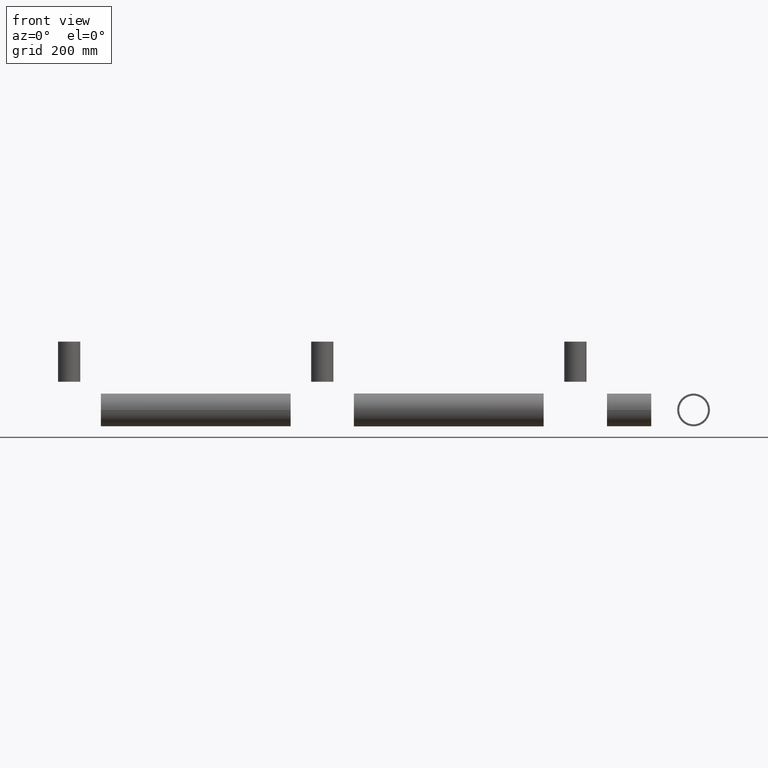
[diagram: clean part render]
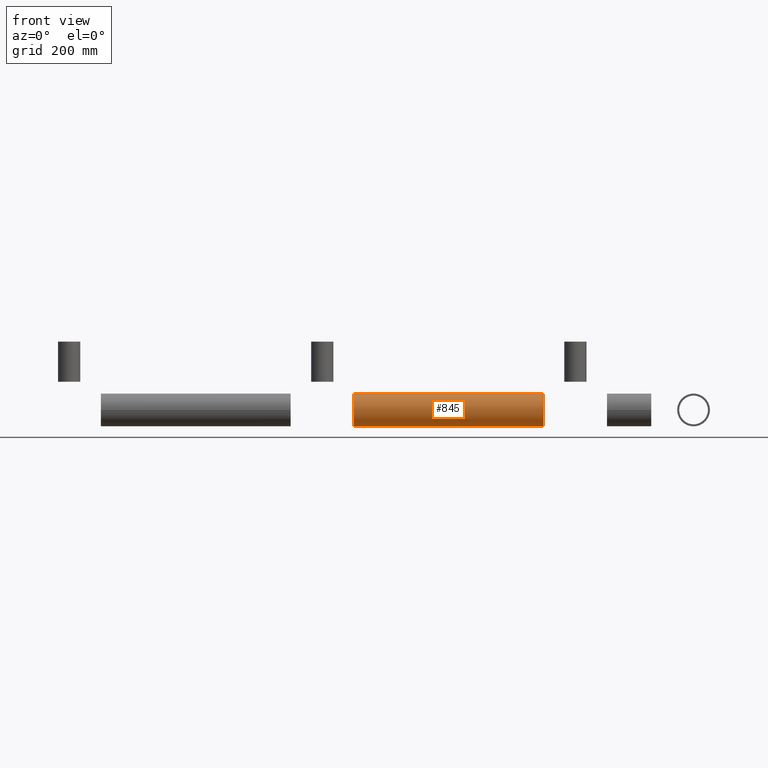
[diagram: same view with one face highlighted and labeled with its STEP entity id]
A machine part, front view. The second image highlights one B-rep face of the part: STEP entity #845.
In plain terms, the highlighted cylindrical surface (edge-blend (fillet) strip) has radius 44.45 mm, axis along (1, 0, -0).
Its self-contained STEP definition (entity closure, byte-faithful):
#27 = CARTESIAN_POINT ( 'NONE',  ( 85.70000000000000284, 0.000000000000000000, 4.586276769382526843E-65 ) ) ;
#31 = DIRECTION ( 'NONE',  ( 0.000000000000000000, 0.000000000000000000, -1.000000000000000000 ) ) ;
#33 = DIRECTION ( 'NONE',  ( 1.000000000000000000, 0.000000000000000000, -1.111127439881452138E-69 ) ) ;
#50 = VECTOR ( 'NONE', #686, 1000.000000000000000 ) ;
#118 = DIRECTION ( 'NONE',  ( 0.000000000000000000, -1.000000000000000000, -6.528202825209861639E-66 ) ) ;
#141 = DIRECTION ( 'NONE',  ( -1.000000000000000000, -1.361513478024022519E-17, 4.159575351272847437E-68 ) ) ;
#142 = CARTESIAN_POINT ( 'NONE',  ( 85.70000000000000284, 0.000000000000000000, -44.45000000000000995 ) ) ;
#167 = EDGE_CURVE ( 'NONE', #1053, #378, #257, .T. ) ;
#194 = ORIENTED_EDGE ( 'NONE', *, *, #939, .F. ) ;
#216 = DIRECTION ( 'NONE',  ( 1.000000000000000000, 0.000000000000000000, -1.111127439881452138E-69 ) ) ;
#257 = CIRCLE ( 'NONE', #570, 44.45000000000000995 ) ;
#298 = DIRECTION ( 'NONE',  ( -1.000000000000000000, -1.361513478024022519E-17, 4.159575351272847437E-68 ) ) ;
#314 = VERTEX_POINT ( 'NONE', #701 ) ;
#353 = CARTESIAN_POINT ( 'NONE',  ( 599.3000000000000682, 5.443555022209986486E-15, 44.45000000000000995 ) ) ;
#378 = VERTEX_POINT ( 'NONE', #353 ) ;
#417 = DIRECTION ( 'NONE',  ( 0.000000000000000000, -1.000000000000000000, -6.528202825209861639E-66 ) ) ;
#436 = ORIENTED_EDGE ( 'NONE', *, *, #692, .T. ) ;
#494 = FACE_OUTER_BOUND ( 'NONE', #507, .T. ) ;
#497 = CARTESIAN_POINT ( 'NONE',  ( 85.70000000000000284, 5.443555022209986486E-15, 44.45000000000000995 ) ) ;
#507 = EDGE_LOOP ( 'NONE', ( #758, #194, #436, #1078 ) ) ;
#570 = AXIS2_PLACEMENT_3D ( 'NONE', #999, #298, #118 ) ;
#599 = CARTESIAN_POINT ( 'NONE',  ( 85.70000000000000284, -2.517344808156641213E-83, -44.45000000000000995 ) ) ;
#637 = AXIS2_PLACEMENT_3D ( 'NONE', #27, #216, #31 ) ;
#644 = CARTESIAN_POINT ( 'NONE',  ( 599.3000000000000682, -2.517344808156641213E-83, -44.45000000000000995 ) ) ;
#661 = VERTEX_POINT ( 'NONE', #599 ) ;
#686 = DIRECTION ( 'NONE',  ( 1.000000000000000000, 0.000000000000000000, -1.111127439881452138E-69 ) ) ;
#692 = EDGE_CURVE ( 'NONE', #661, #1053, #1193, .T. ) ;
#701 = CARTESIAN_POINT ( 'NONE',  ( 85.70000000000000284, 5.443555022209986486E-15, 44.45000000000000995 ) ) ;
#758 = ORIENTED_EDGE ( 'NONE', *, *, #1217, .F. ) ;
#775 = CIRCLE ( 'NONE', #1057, 44.45000000000000995 ) ;
#845 = ADVANCED_FACE ( 'NONE', ( #494 ), #889, .T. ) ;
#889 = CYLINDRICAL_SURFACE ( 'NONE', #637, 44.45000000000000995 ) ;
#905 = CARTESIAN_POINT ( 'NONE',  ( 85.70000000000000284, 0.000000000000000000, 4.586276769382526843E-65 ) ) ;
#939 = EDGE_CURVE ( 'NONE', #661, #314, #775, .T. ) ;
#999 = CARTESIAN_POINT ( 'NONE',  ( 599.3000000000000682, 0.000000000000000000, 4.529209264070215932E-65 ) ) ;
#1053 = VERTEX_POINT ( 'NONE', #644 ) ;
#1057 = AXIS2_PLACEMENT_3D ( 'NONE', #905, #141, #417 ) ;
#1078 = ORIENTED_EDGE ( 'NONE', *, *, #167, .T. ) ;
#1098 = VECTOR ( 'NONE', #33, 1000.000000000000000 ) ;
#1161 = LINE ( 'NONE', #497, #50 ) ;
#1193 = LINE ( 'NONE', #142, #1098 ) ;
#1217 = EDGE_CURVE ( 'NONE', #314, #378, #1161, .T. ) ;